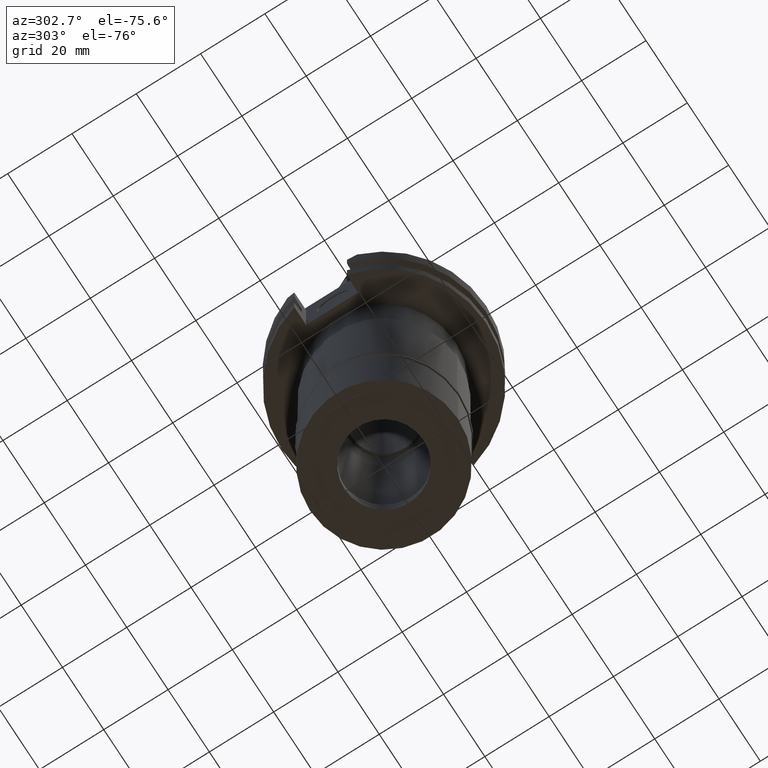
[diagram: clean part render]
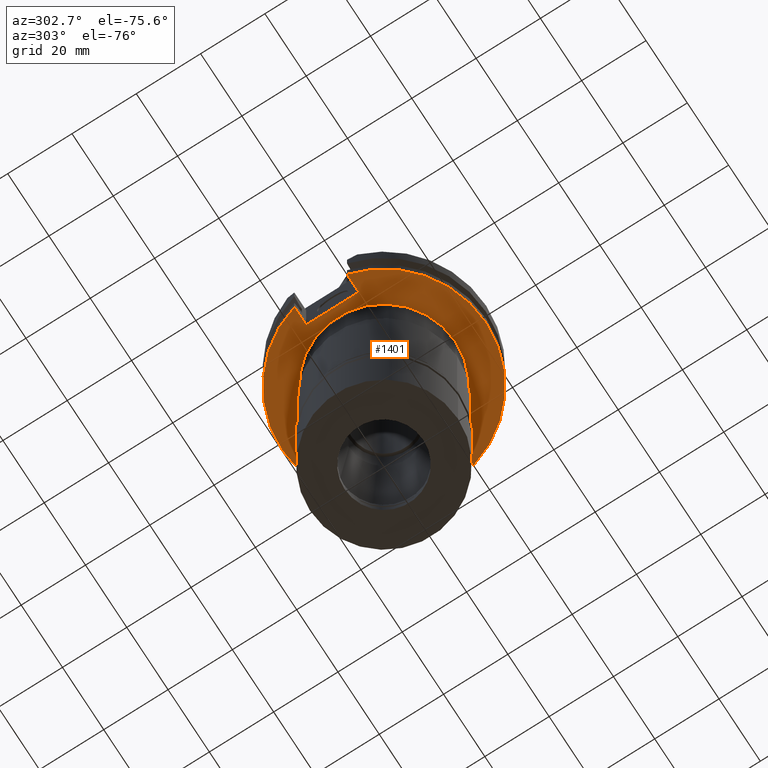
[diagram: same view with one face highlighted and labeled with its STEP entity id]
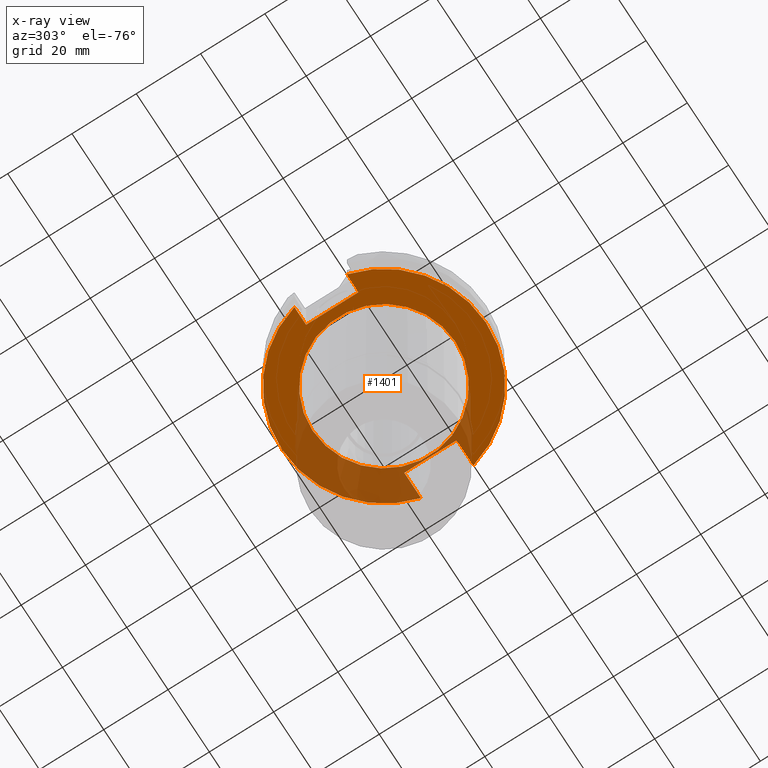
[diagram: x-ray of the same camera — body ghosted, the highlighted face saturated]
A machine part, auxiliary view. The second image highlights one B-rep face of the part: STEP entity #1401.
The next image is the same camera in x-ray: the body ghosted, the highlighted face saturated — about 29% of this face is hidden behind the body in this view.
In plain terms, the highlighted planar face has unit normal (0, 0, -1).
Its self-contained STEP definition (entity closure, byte-faithful):
#41 = CARTESIAN_POINT ( 'NONE',  ( -24.98000000000000043, -8.189999999999999503, -19.05000000000000071 ) ) ;
#81 = ORIENTED_EDGE ( 'NONE', *, *, #2904, .F. ) ;
#110 = DIRECTION ( 'NONE',  ( 0.0000000000000000000, 0.0000000000000000000, 1.000000000000000000 ) ) ;
#159 = VERTEX_POINT ( 'NONE', #567 ) ;
#255 = CARTESIAN_POINT ( 'NONE',  ( 30.67550162588999640, -8.189999999999999503, -19.05000000000000071 ) ) ;
#296 = EDGE_CURVE ( 'NONE', #1756, #2568, #448, .T. ) ;
#355 = DIRECTION ( 'NONE',  ( 1.000000000000000000, 0.0000000000000000000, 0.0000000000000000000 ) ) ;
#397 = DIRECTION ( 'NONE',  ( 0.0000000000000000000, 0.0000000000000000000, 1.000000000000000000 ) ) ;
#427 = PLANE ( 'NONE',  #664 ) ;
#448 = CIRCLE ( 'NONE', #702, 22.22500000000000142 ) ;
#549 = CARTESIAN_POINT ( 'NONE',  ( 22.57000000000000028, 8.189999999999999503, -19.05000000000000071 ) ) ;
#563 = VECTOR ( 'NONE', #355, 1000.000000000000000 ) ;
#567 = CARTESIAN_POINT ( 'NONE',  ( 30.67550162588999640, 8.189999999999999503, -19.05000000000000071 ) ) ;
#582 = EDGE_LOOP ( 'NONE', ( #1921, #1245 ) ) ;
#607 = CIRCLE ( 'NONE', #3110, 31.75000000000000000 ) ;
#612 = DIRECTION ( 'NONE',  ( 0.0000000000000000000, 0.0000000000000000000, -1.000000000000000000 ) ) ;
#614 = LINE ( 'NONE', #2830, #563 ) ;
#616 = ORIENTED_EDGE ( 'NONE', *, *, #1874, .T. ) ;
#628 = CARTESIAN_POINT ( 'NONE',  ( -30.67550162588999640, -8.189999999999999503, -19.05000000000000071 ) ) ;
#664 = AXIS2_PLACEMENT_3D ( 'NONE', #2593, #669, #1359 ) ;
#669 = DIRECTION ( 'NONE',  ( 0.0000000000000000000, 0.0000000000000000000, -1.000000000000000000 ) ) ;
#702 = AXIS2_PLACEMENT_3D ( 'NONE', #1854, #612, #2371 ) ;
#710 = CARTESIAN_POINT ( 'NONE',  ( 22.57000000000000028, -8.189999999999999503, -19.05000000000000071 ) ) ;
#771 = CARTESIAN_POINT ( 'NONE',  ( -24.98000000000000043, -8.189999999999999503, -19.05000000000000071 ) ) ;
#820 = ORIENTED_EDGE ( 'NONE', *, *, #2211, .F. ) ;
#831 = CARTESIAN_POINT ( 'NONE',  ( -24.98000000000000043, 8.189999999999999503, -19.05000000000000071 ) ) ;
#868 = CARTESIAN_POINT ( 'NONE',  ( 22.57000000000000028, 8.189999999999999503, -19.05000000000000071 ) ) ;
#898 = CARTESIAN_POINT ( 'NONE',  ( 0.0000000000000000000, 2.157735811588000074E-14, -19.05000000000000071 ) ) ;
#994 = ORIENTED_EDGE ( 'NONE', *, *, #1064, .T. ) ;
#1013 = DIRECTION ( 'NONE',  ( 0.0000000000000000000, 0.0000000000000000000, -1.000000000000000000 ) ) ;
#1064 = EDGE_CURVE ( 'NONE', #2098, #1310, #1327, .T. ) ;
#1102 = LINE ( 'NONE', #868, #2051 ) ;
#1146 = FACE_OUTER_BOUND ( 'NONE', #1432, .T. ) ;
#1240 = VECTOR ( 'NONE', #3007, 1000.000000000000000 ) ;
#1245 = ORIENTED_EDGE ( 'NONE', *, *, #296, .F. ) ;
#1265 = CARTESIAN_POINT ( 'NONE',  ( 0.0000000000000000000, 2.157735811588000074E-14, -19.05000000000000071 ) ) ;
#1283 = VECTOR ( 'NONE', #2528, 1000.000000000000000 ) ;
#1310 = VERTEX_POINT ( 'NONE', #2654 ) ;
#1327 = LINE ( 'NONE', #831, #1283 ) ;
#1359 = DIRECTION ( 'NONE',  ( 0.0000000000000000000, -1.000000000000000000, 0.0000000000000000000 ) ) ;
#1374 = ORIENTED_EDGE ( 'NONE', *, *, #2803, .T. ) ;
#1401 = ADVANCED_FACE ( 'NONE', ( #1146, #2174 ), #427, .T. ) ;
#1404 = EDGE_CURVE ( 'NONE', #2245, #1720, #607, .T. ) ;
#1432 = EDGE_LOOP ( 'NONE', ( #616, #2954, #3211, #820, #994, #81, #2716, #1374 ) ) ;
#1521 = LINE ( 'NONE', #2505, #1240 ) ;
#1558 = DIRECTION ( 'NONE',  ( 0.0000000000000000000, -1.000000000000000000, 0.0000000000000000000 ) ) ;
#1594 = VERTEX_POINT ( 'NONE', #2453 ) ;
#1632 = DIRECTION ( 'NONE',  ( 0.0000000000000000000, -1.000000000000000000, 0.0000000000000000000 ) ) ;
#1720 = VERTEX_POINT ( 'NONE', #255 ) ;
#1749 = CARTESIAN_POINT ( 'NONE',  ( -24.98000000000000043, 8.189999999999999503, -19.05000000000000071 ) ) ;
#1756 = VERTEX_POINT ( 'NONE', #1766 ) ;
#1766 = CARTESIAN_POINT ( 'NONE',  ( 0.0000000000000000000, -22.22500000000000142, -19.05000000000000071 ) ) ;
#1854 = CARTESIAN_POINT ( 'NONE',  ( 0.0000000000000000000, 2.157735811588000074E-14, -19.05000000000000071 ) ) ;
#1863 = CARTESIAN_POINT ( 'NONE',  ( 0.0000000000000000000, 2.157735811588000074E-14, -19.05000000000000071 ) ) ;
#1874 = EDGE_CURVE ( 'NONE', #2603, #1720, #614, .T. ) ;
#1921 = ORIENTED_EDGE ( 'NONE', *, *, #2729, .F. ) ;
#2051 = VECTOR ( 'NONE', #3151, 1000.000000000000000 ) ;
#2059 = LINE ( 'NONE', #771, #3068 ) ;
#2098 = VERTEX_POINT ( 'NONE', #1749 ) ;
#2174 = FACE_BOUND ( 'NONE', #582, .T. ) ;
#2200 = CARTESIAN_POINT ( 'NONE',  ( 0.0000000000000000000, 22.22500000000000142, -19.05000000000000071 ) ) ;
#2211 = EDGE_CURVE ( 'NONE', #2098, #2785, #1521, .T. ) ;
#2212 = EDGE_CURVE ( 'NONE', #2785, #2245, #2059, .T. ) ;
#2245 = VERTEX_POINT ( 'NONE', #628 ) ;
#2251 = DIRECTION ( 'NONE',  ( 0.0000000000000000000, 1.000000000000000000, 0.0000000000000000000 ) ) ;
#2307 = AXIS2_PLACEMENT_3D ( 'NONE', #1265, #1013, #2251 ) ;
#2311 = VECTOR ( 'NONE', #1558, 1000.000000000000000 ) ;
#2371 = DIRECTION ( 'NONE',  ( 0.0000000000000000000, -1.000000000000000000, 0.0000000000000000000 ) ) ;
#2453 = CARTESIAN_POINT ( 'NONE',  ( 22.57000000000000028, 8.189999999999999503, -19.05000000000000071 ) ) ;
#2454 = CIRCLE ( 'NONE', #2307, 22.22500000000000142 ) ;
#2505 = CARTESIAN_POINT ( 'NONE',  ( -24.98000000000000043, 8.189999999999999503, -19.05000000000000071 ) ) ;
#2528 = DIRECTION ( 'NONE',  ( -1.000000000000000000, 0.0000000000000000000, 0.0000000000000000000 ) ) ;
#2568 = VERTEX_POINT ( 'NONE', #2200 ) ;
#2593 = CARTESIAN_POINT ( 'NONE',  ( 0.0000000000000000000, 0.0000000000000000000, -19.05000000000000071 ) ) ;
#2603 = VERTEX_POINT ( 'NONE', #710 ) ;
#2654 = CARTESIAN_POINT ( 'NONE',  ( -30.67550162588999640, 8.189999999999999503, -19.05000000000000071 ) ) ;
#2716 = ORIENTED_EDGE ( 'NONE', *, *, #2905, .F. ) ;
#2729 = EDGE_CURVE ( 'NONE', #2568, #1756, #2454, .T. ) ;
#2760 = DIRECTION ( 'NONE',  ( -1.000000000000000000, 0.0000000000000000000, 0.0000000000000000000 ) ) ;
#2764 = CIRCLE ( 'NONE', #3025, 31.75000000000000000 ) ;
#2781 = LINE ( 'NONE', #549, #2311 ) ;
#2785 = VERTEX_POINT ( 'NONE', #41 ) ;
#2803 = EDGE_CURVE ( 'NONE', #1594, #2603, #2781, .T. ) ;
#2830 = CARTESIAN_POINT ( 'NONE',  ( 22.57000000000000028, -8.189999999999999503, -19.05000000000000071 ) ) ;
#2904 = EDGE_CURVE ( 'NONE', #159, #1310, #2764, .T. ) ;
#2905 = EDGE_CURVE ( 'NONE', #1594, #159, #1102, .T. ) ;
#2954 = ORIENTED_EDGE ( 'NONE', *, *, #1404, .F. ) ;
#3007 = DIRECTION ( 'NONE',  ( 0.0000000000000000000, -1.000000000000000000, 0.0000000000000000000 ) ) ;
#3025 = AXIS2_PLACEMENT_3D ( 'NONE', #898, #397, #3134 ) ;
#3068 = VECTOR ( 'NONE', #2760, 1000.000000000000000 ) ;
#3110 = AXIS2_PLACEMENT_3D ( 'NONE', #1863, #110, #1632 ) ;
#3134 = DIRECTION ( 'NONE',  ( 0.0000000000000000000, 1.000000000000000000, 0.0000000000000000000 ) ) ;
#3151 = DIRECTION ( 'NONE',  ( 1.000000000000000000, 0.0000000000000000000, 0.0000000000000000000 ) ) ;
#3211 = ORIENTED_EDGE ( 'NONE', *, *, #2212, .F. ) ;